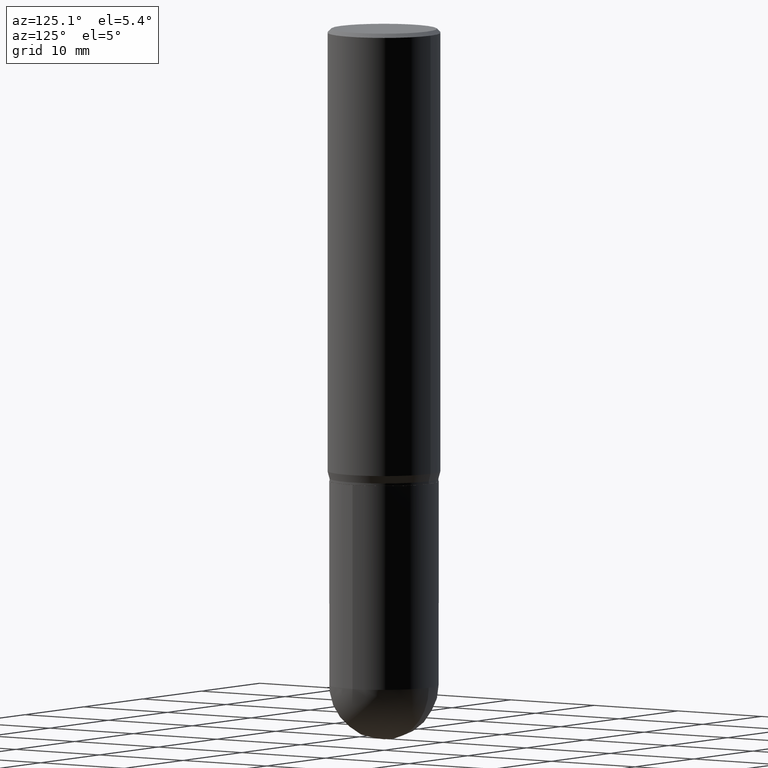
[diagram: clean part render]
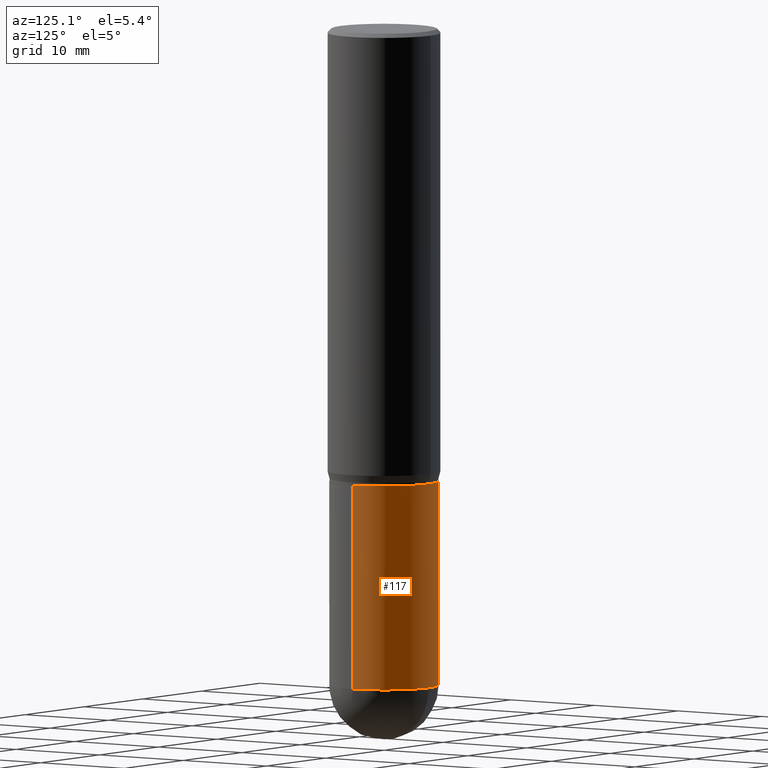
[diagram: same view with one face highlighted and labeled with its STEP entity id]
A machine part, auxiliary view. The second image highlights one B-rep face of the part: STEP entity #117.
In plain terms, the highlighted cylindrical surface (partial cylindrical patch) has radius 5.3581 mm, axis along (-0, 0, 1).
Its self-contained STEP definition (entity closure, byte-faithful):
#8 = CARTESIAN_POINT ( 'NONE',  ( 6.209167572344372023E-29, -8.865045693389689499E-15, -2.539050000000000473 ) ) ;
#24 = ORIENTED_EDGE ( 'NONE', *, *, #404, .F. ) ;
#39 = CIRCLE ( 'NONE', #137, 0.2109499999999999986 ) ;
#46 = FACE_OUTER_BOUND ( 'NONE', #177, .T. ) ;
#49 = DIRECTION ( 'NONE',  ( 1.000000000000000000, -6.982962677686266711E-15, 0.000000000000000000 ) ) ;
#50 = CARTESIAN_POINT ( 'NONE',  ( 4.279570410823988484E-29, -6.110092342975504671E-15, -1.750000000000000000 ) ) ;
#80 = EDGE_CURVE ( 'NONE', #145, #110, #160, .T. ) ;
#84 = DIRECTION ( 'NONE',  ( -2.445468806185136597E-29, 3.491481338843145583E-15, 1.000000000000000000 ) ) ;
#97 = ORIENTED_EDGE ( 'NONE', *, *, #511, .F. ) ;
#101 = VECTOR ( 'NONE', #270, 39.37007874015748143 ) ;
#110 = VERTEX_POINT ( 'NONE', #403 ) ;
#114 = CARTESIAN_POINT ( 'NONE',  ( 0.2109500000000000541, -8.960624995040515044E-15, -2.539050000000000473 ) ) ;
#117 = ADVANCED_FACE ( 'NONE', ( #46 ), #208, .T. ) ;
#137 = AXIS2_PLACEMENT_3D ( 'NONE', #50, #84, #49 ) ;
#145 = VERTEX_POINT ( 'NONE', #114 ) ;
#160 = CIRCLE ( 'NONE', #329, 0.2109500000000000541 ) ;
#162 = DIRECTION ( 'NONE',  ( -2.445468806185136597E-29, 3.491481338843145583E-15, 1.000000000000000000 ) ) ;
#163 = EDGE_CURVE ( 'NONE', #110, #225, #479, .T. ) ;
#174 = VERTEX_POINT ( 'NONE', #500 ) ;
#177 = EDGE_LOOP ( 'NONE', ( #448, #223, #24, #97, #390 ) ) ;
#201 = LINE ( 'NONE', #268, #101 ) ;
#208 = CYLINDRICAL_SURFACE ( 'NONE', #282, 0.2109500000000000541 ) ;
#223 = ORIENTED_EDGE ( 'NONE', *, *, #260, .T. ) ;
#225 = VERTEX_POINT ( 'NONE', #234 ) ;
#231 = CARTESIAN_POINT ( 'NONE',  ( 0.2109500000000000541, -1.473055976857918157E-15, 1.028629490854152908E-29 ) ) ;
#234 = CARTESIAN_POINT ( 'NONE',  ( -0.2109500000000000541, -5.988679117096665555E-15, -2.539050000000000473 ) ) ;
#236 = VECTOR ( 'NONE', #394, 39.37007874015748143 ) ;
#260 = EDGE_CURVE ( 'NONE', #225, #174, #201, .T. ) ;
#268 = CARTESIAN_POINT ( 'NONE',  ( -0.2109500000000000541, 1.498889901085931727E-15, -1.037649357289272662E-29 ) ) ;
#269 = DIRECTION ( 'NONE',  ( 1.000000000000000000, -6.982962677686265922E-15, 4.876176775795935793E-29 ) ) ;
#270 = DIRECTION ( 'NONE',  ( -2.445468806185136877E-29, 3.491481338843145188E-15, 1.000000000000000000 ) ) ;
#282 = AXIS2_PLACEMENT_3D ( 'NONE', #363, #483, #269 ) ;
#284 = VERTEX_POINT ( 'NONE', #364 ) ;
#296 = CARTESIAN_POINT ( 'NONE',  ( 6.209167572344372023E-29, -8.865045693389689499E-15, -2.539050000000000473 ) ) ;
#329 = AXIS2_PLACEMENT_3D ( 'NONE', #8, #162, #401 ) ;
#339 = DIRECTION ( 'NONE',  ( 1.000000000000000000, -6.982962677686265133E-15, 0.000000000000000000 ) ) ;
#347 = AXIS2_PLACEMENT_3D ( 'NONE', #296, #383, #339 ) ;
#363 = CARTESIAN_POINT ( 'NONE',  ( 0.000000000000000000, 0.000000000000000000, 0.000000000000000000 ) ) ;
#364 = CARTESIAN_POINT ( 'NONE',  ( 0.2109499999999999986, -7.583148319833423025E-15, -1.750000000000000000 ) ) ;
#383 = DIRECTION ( 'NONE',  ( -2.445468806185136597E-29, 3.491481338843145583E-15, 1.000000000000000000 ) ) ;
#390 = ORIENTED_EDGE ( 'NONE', *, *, #80, .T. ) ;
#394 = DIRECTION ( 'NONE',  ( -2.445468806185136877E-29, 3.491481338843145188E-15, 1.000000000000000000 ) ) ;
#401 = DIRECTION ( 'NONE',  ( 1.000000000000000000, -6.982962677686265133E-15, 0.000000000000000000 ) ) ;
#403 = CARTESIAN_POINT ( 'NONE',  ( 1.473055976857980082E-15, 0.2109499999999912001, -2.539050000000000917 ) ) ;
#404 = EDGE_CURVE ( 'NONE', #284, #174, #39, .T. ) ;
#427 = LINE ( 'NONE', #231, #236 ) ;
#448 = ORIENTED_EDGE ( 'NONE', *, *, #163, .T. ) ;
#479 = CIRCLE ( 'NONE', #347, 0.2109500000000000541 ) ;
#483 = DIRECTION ( 'NONE',  ( -2.445468806185136597E-29, 3.491481338843145583E-15, 1.000000000000000000 ) ) ;
#500 = CARTESIAN_POINT ( 'NONE',  ( -0.2109499999999999986, -5.988679117096665555E-15, -1.750000000000000000 ) ) ;
#511 = EDGE_CURVE ( 'NONE', #145, #284, #427, .T. ) ;